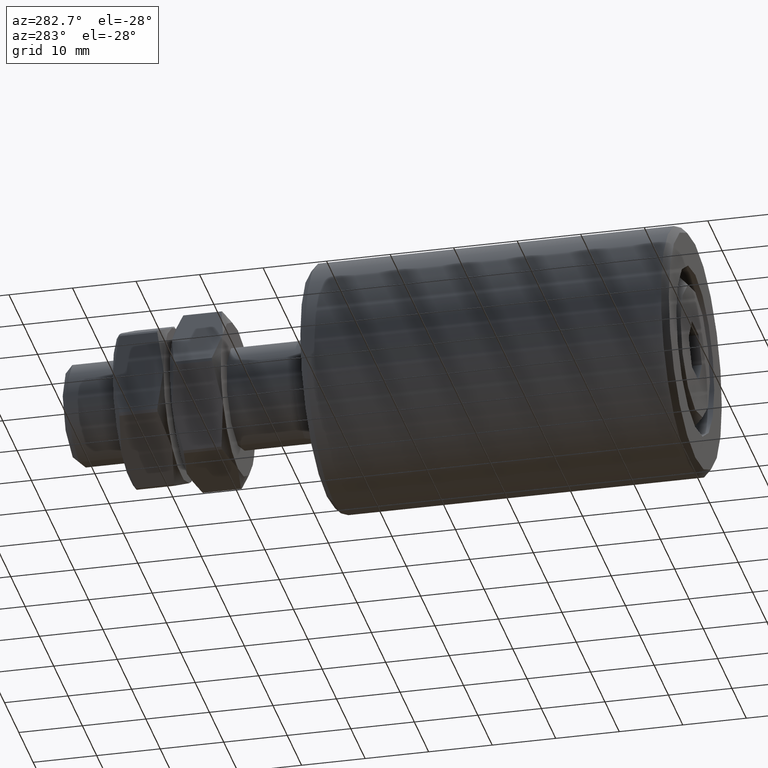
[diagram: clean part render]
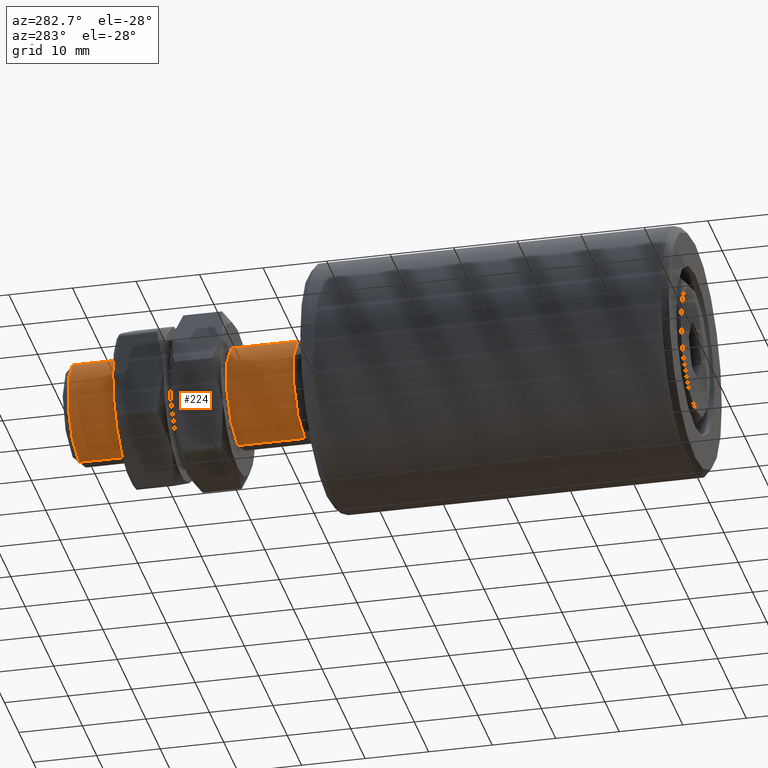
[diagram: same view with one face highlighted and labeled with its STEP entity id]
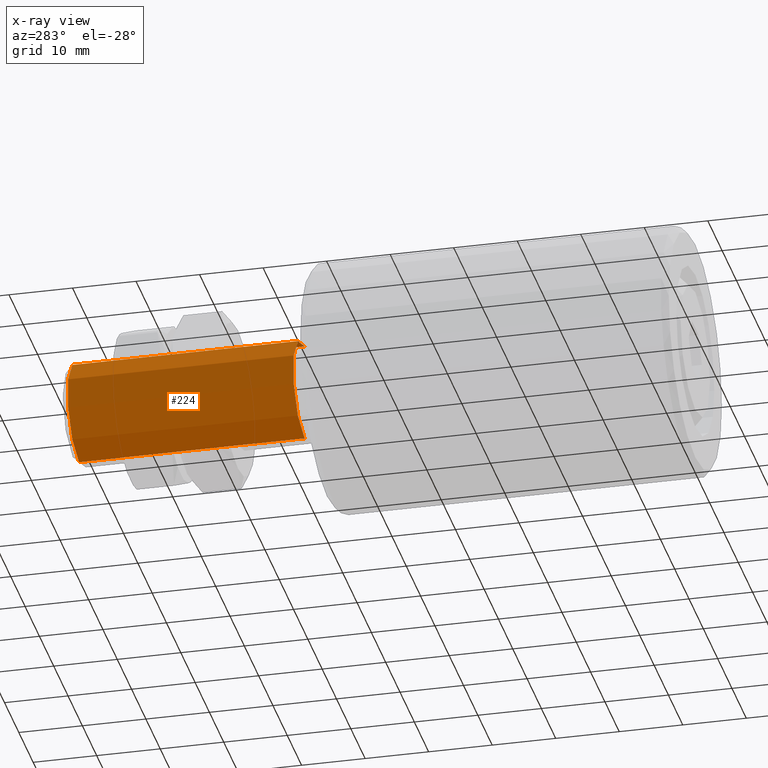
[diagram: x-ray of the same camera — body ghosted, the highlighted face saturated]
A machine part, auxiliary view. The second image highlights one B-rep face of the part: STEP entity #224.
The next image is the same camera in x-ray: the body ghosted, the highlighted face saturated — about 0% of this face is hidden behind the body in this view.
In plain terms, the highlighted cylindrical surface (partial cylindrical patch) has radius 8 mm, axis along (-0, -1, -0).
Its self-contained STEP definition (entity closure, byte-faithful):
#224 = ADVANCED_FACE ( 'NONE', ( #6139 ), #11551, .T. ) ;
#671 = CARTESIAN_POINT ( 'NONE',  ( 0.000000000000000000, 0.000000000000000000, 0.000000000000000000 ) ) ;
#785 = DIRECTION ( 'NONE',  ( -0.000000000000000000, -1.000000000000000000, -0.000000000000000000 ) ) ;
#852 = AXIS2_PLACEMENT_3D ( 'NONE', #671, #15329, #8219 ) ;
#1113 = EDGE_CURVE ( 'NONE', #5587, #14434, #2754, .T. ) ;
#1484 = CARTESIAN_POINT ( 'NONE',  ( 0.000000000000000000, 96.99999999999997158, -8.000000000000000000 ) ) ;
#1923 = CARTESIAN_POINT ( 'NONE',  ( 9.797174393178825657E-16, 96.99999999999997158, 8.000000000000000000 ) ) ;
#2272 = ORIENTED_EDGE ( 'NONE', *, *, #3105, .F. ) ;
#2754 = LINE ( 'NONE', #7861, #11903 ) ;
#3001 = CARTESIAN_POINT ( 'NONE',  ( 9.797174393178825657E-16, 0.000000000000000000, 8.000000000000000000 ) ) ;
#3105 = EDGE_CURVE ( 'NONE', #14885, #12534, #14104, .T. ) ;
#5007 = DIRECTION ( 'NONE',  ( -0.000000000000000000, -1.000000000000000000, -0.000000000000000000 ) ) ;
#5425 = CIRCLE ( 'NONE', #7972, 8.000000000000000000 ) ;
#5587 = VERTEX_POINT ( 'NONE', #1484 ) ;
#6139 = FACE_OUTER_BOUND ( 'NONE', #8283, .T. ) ;
#6394 = ORIENTED_EDGE ( 'NONE', *, *, #8780, .T. ) ;
#6463 = VECTOR ( 'NONE', #8858, 1000.000000000000000 ) ;
#6472 = CARTESIAN_POINT ( 'NONE',  ( 0.000000000000000000, 61.50000000000000711, 0.000000000000000000 ) ) ;
#7422 = DIRECTION ( 'NONE',  ( 0.000000000000000000, 0.000000000000000000, 1.000000000000000000 ) ) ;
#7440 = ORIENTED_EDGE ( 'NONE', *, *, #9292, .F. ) ;
#7861 = CARTESIAN_POINT ( 'NONE',  ( 0.000000000000000000, 0.000000000000000000, -8.000000000000000000 ) ) ;
#7972 = AXIS2_PLACEMENT_3D ( 'NONE', #11151, #5007, #7422 ) ;
#8219 = DIRECTION ( 'NONE',  ( 0.000000000000000000, 0.000000000000000000, -1.000000000000000000 ) ) ;
#8283 = EDGE_LOOP ( 'NONE', ( #2272, #6394, #11238, #7440 ) ) ;
#8780 = EDGE_CURVE ( 'NONE', #14885, #5587, #5425, .T. ) ;
#8858 = DIRECTION ( 'NONE',  ( -0.000000000000000000, -1.000000000000000000, -0.000000000000000000 ) ) ;
#9292 = EDGE_CURVE ( 'NONE', #12534, #14434, #10610, .T. ) ;
#9847 = DIRECTION ( 'NONE',  ( 0.000000000000000000, 0.000000000000000000, -1.000000000000000000 ) ) ;
#10610 = CIRCLE ( 'NONE', #12449, 8.000000000000003553 ) ;
#10808 = CARTESIAN_POINT ( 'NONE',  ( 0.000000000000000000, 61.50000000000000711, -8.000000000000003553 ) ) ;
#11151 = CARTESIAN_POINT ( 'NONE',  ( 0.000000000000000000, 96.99999999999997158, 0.000000000000000000 ) ) ;
#11153 = CARTESIAN_POINT ( 'NONE',  ( 9.797174393178829602E-16, 61.50000000000000711, 8.000000000000003553 ) ) ;
#11238 = ORIENTED_EDGE ( 'NONE', *, *, #1113, .T. ) ;
#11551 = CYLINDRICAL_SURFACE ( 'NONE', #852, 8.000000000000000000 ) ;
#11903 = VECTOR ( 'NONE', #785, 1000.000000000000000 ) ;
#12449 = AXIS2_PLACEMENT_3D ( 'NONE', #6472, #13522, #9847 ) ;
#12534 = VERTEX_POINT ( 'NONE', #11153 ) ;
#13522 = DIRECTION ( 'NONE',  ( -0.000000000000000000, -1.000000000000000000, -0.000000000000000000 ) ) ;
#14104 = LINE ( 'NONE', #3001, #6463 ) ;
#14434 = VERTEX_POINT ( 'NONE', #10808 ) ;
#14885 = VERTEX_POINT ( 'NONE', #1923 ) ;
#15329 = DIRECTION ( 'NONE',  ( -0.000000000000000000, -1.000000000000000000, -0.000000000000000000 ) ) ;